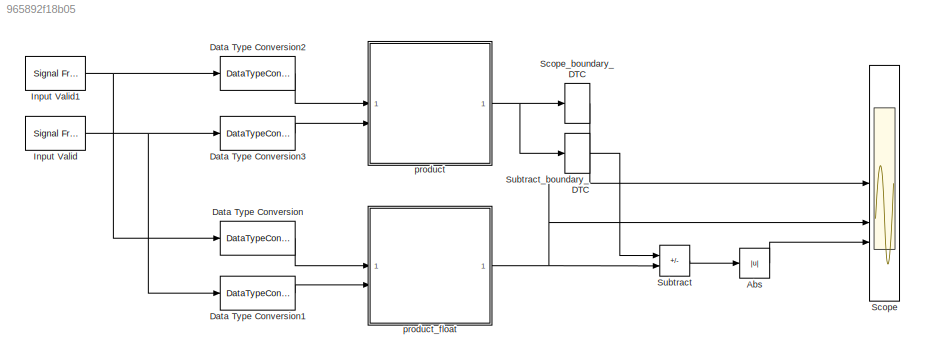
MODEL slx_965892f18b05
KIND model
CONFIG AbsTol = auto
CONFIG EnableMultiTasking = off
CONFIG FixedStep = auto
CONFIG MaxStep = auto
CONFIG MinStep = auto
CONFIG RelTol = 1e-3
CONFIG SampleTimeConstraint = Unconstrained
CONFIG SolverName = FixedStepDiscrete
CONFIG StartTime = 0.0
CONFIG StopTime = stopTime
BLOCK [Abs] Abs
  OutDataTypeStr = fixdt(0,21,16)
  SaturateOnIntegerOverflow = off
BLOCK [DataTypeConversion] Data Type Conversion
  OutDataTypeStr = fixdt(0,21,18)
  RndMeth = Floor
  SaturateOnIntegerOverflow = off
BLOCK [DataTypeConversion] Data Type Conversion1
  OutDataTypeStr = fixdt(0,21,18)
  RndMeth = Floor
  SaturateOnIntegerOverflow = off
BLOCK [DataTypeConversion] Data Type Conversion2
  OutDataTypeStr = fixdt(0,25,22)
  OutMax = 5
  OutMin = 0
  RndMeth = Floor
  SaturateOnIntegerOverflow = off
BLOCK [DataTypeConversion] Data Type Conversion3
  OutDataTypeStr = fixdt(0,22,19)
  OutMax = 5
  OutMin = 0
  RndMeth = Floor
  SaturateOnIntegerOverflow = off
BLOCK [Reference] Input Valid  REF=dspsrcs4/Signal From
Workspace
  SourceBlock = dspsrcs4/Signal From\nWorkspace
  SourceType = Signal From Workspace
BLOCK [Reference] Input Valid1  REF=dspsrcs4/Signal From
Workspace
  SourceBlock = dspsrcs4/Signal From\nWorkspace
  SourceType = Signal From Workspace
BLOCK [Scope] Scope
  Floating = off
  NumInputPorts = 3
  ScopeSpecificationString = Simulink.scopes.TimeScopeBlockCfg('CurrentConfiguration', extmgr.ConfigurationSet(extmgr.Configuration('Core','General UI',true),extmgr.Configuration('Core','Source UI',true),extmgr.Configuration('Sources','WiredSimulink',true,'DataLoggingSaveFormat','Array','DataLoggingLimitDataPoints',true,'DataLoggingDecimation','1'),extmgr.Configuration('Visuals','Time Domain',true,'SerializedDisplays',{struct...<+3294ch>
BLOCK [DataTypeConversion] Scope_boundary_DTC
  OutDataTypeStr = fixdt(0,21,16)
BLOCK [Sum] Subtract
  AccumDataTypeStr = fixdt(1,22,15)
  IconShape = rectangular
  Inputs = +-
  OutDataTypeStr = fixdt(1,22,16)
BLOCK [DataTypeConversion] Subtract_boundary_DTC
  OutDataTypeStr = fixdt(0,21,16)
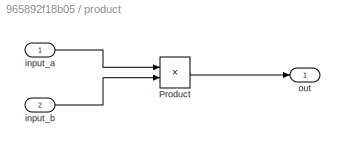
BLOCK [SubSystem] product
BLOCK [Product] product/Product
  OutDataTypeStr = fixdt(0,26,21)
BLOCK [Inport] product/input_a
  OutDataTypeStr = fixdt(0,25,22)
BLOCK [Inport] product/input_b
  OutDataTypeStr = fixdt(0,22,19)
  Port = 2
BLOCK [Outport] product/out
  OutDataTypeStr = fixdt(0,26,21)
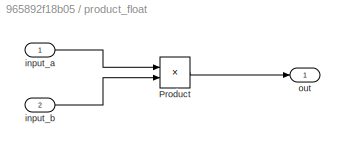
BLOCK [SubSystem] product_float
BLOCK [Product] product_float/Product
  OutDataTypeStr = fixdt(0,22,17)
BLOCK [Inport] product_float/input_a
  OutDataTypeStr = fixdt(0,21,18)
BLOCK [Inport] product_float/input_b
  OutDataTypeStr = fixdt(0,21,18)
  Port = 2
BLOCK [Outport] product_float/out
  OutDataTypeStr = fixdt(0,22,17)
LINE Abs:1 -> Scope:3
LINE Data Type Conversion1:1 -> product_float:2
LINE Data Type Conversion2:1 -> product:1
LINE Data Type Conversion3:1 -> product:2
LINE Data Type Conversion:1 -> product_float:1
NET Input Valid1:1 -> Data Type Conversion2:1, Data Type Conversion:1
NET Input Valid:1 -> Data Type Conversion1:1, Data Type Conversion3:1
LINE Scope_boundary_DTC:1 -> Scope:1
LINE Subtract:1 -> Abs:1
LINE Subtract_boundary_DTC:1 -> Subtract:1
LINE product/Product:1 -> product/out:1
LINE product/input_a:1 -> product/Product:1
LINE product/input_b:1 -> product/Product:2
NET product:1 -> Scope_boundary_DTC:1, Subtract_boundary_DTC:1
LINE product_float/Product:1 -> product_float/out:1
LINE product_float/input_a:1 -> product_float/Product:1
LINE product_float/input_b:1 -> product_float/Product:2
NET product_float:1 -> Scope:2, Subtract:2
note: NET lines group one-source signal fan-out (src -> all destinations, sorted); 1:1 wires keep LINE
